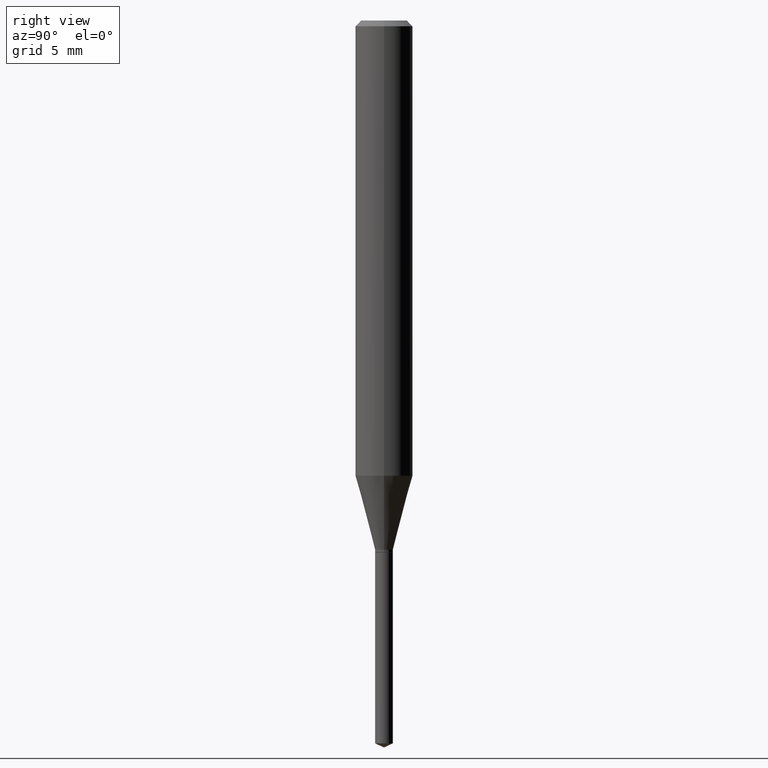
[diagram: clean part render]
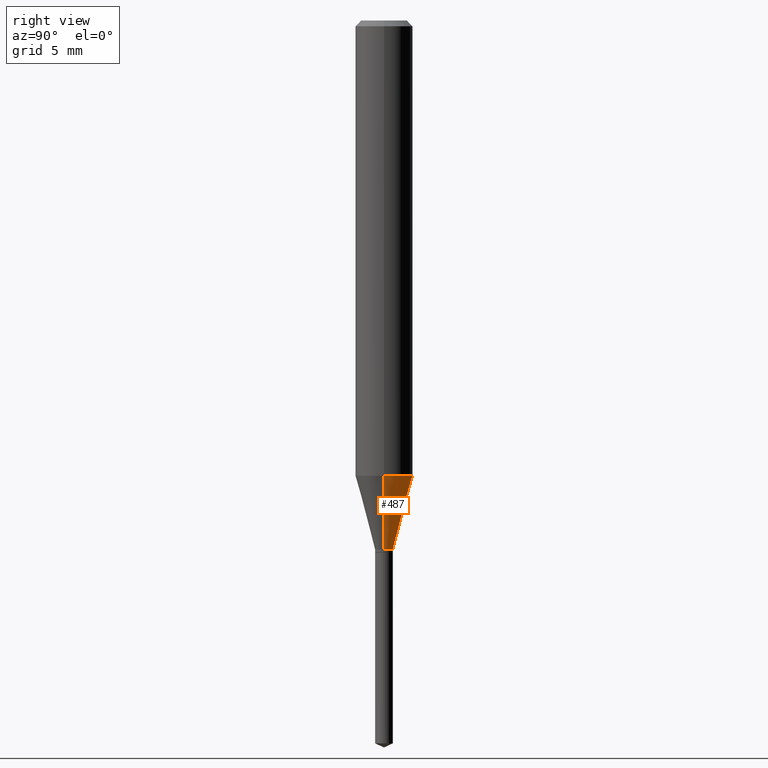
[diagram: same view with one face highlighted and labeled with its STEP entity id]
A machine part, right view. The second image highlights one B-rep face of the part: STEP entity #487.
In plain terms, the highlighted conical surface has half-angle 15 deg.
Its self-contained STEP definition (entity closure, byte-faithful):
#15 = DIRECTION ( 'NONE',  ( 1.000000000000000000, -6.982962677686268288E-15, 0.000000000000000000 ) ) ;
#32 = DIRECTION ( 'NONE',  ( -2.445468806185136597E-29, 3.491481338843145583E-15, 1.000000000000000000 ) ) ;
#36 = CARTESIAN_POINT ( 'NONE',  ( -0.05905000000000010241, -2.851659473211515038E-15, -0.9369189295915679727 ) ) ;
#63 = ORIENTED_EDGE ( 'NONE', *, *, #340, .F. ) ;
#86 = DIRECTION ( 'NONE',  ( 1.000000000000000000, -6.982962677686258033E-15, 0.000000000000000000 ) ) ;
#94 = LINE ( 'NONE', #140, #199 ) ;
#107 = ORIENTED_EDGE ( 'NONE', *, *, #469, .T. ) ;
#124 = DIRECTION ( 'NONE',  ( 0.2588190451025211281, 1.565188264969622954E-15, 0.9659258262890679791 ) ) ;
#140 = CARTESIAN_POINT ( 'NONE',  ( -0.01830000000000000029, -3.672193857356087232E-15, -1.088999999999999968 ) ) ;
#160 = CARTESIAN_POINT ( 'NONE',  ( 0.01830000000000000029, -3.930011395001844240E-15, -1.088999999999999968 ) ) ;
#166 = CARTESIAN_POINT ( 'NONE',  ( 0.05905000000000010241, -3.683578904795229057E-15, -0.9369189295915679727 ) ) ;
#169 = AXIS2_PLACEMENT_3D ( 'NONE', #454, #32, #249 ) ;
#172 = EDGE_LOOP ( 'NONE', ( #288, #107, #331, #63 ) ) ;
#176 = VERTEX_POINT ( 'NONE', #36 ) ;
#199 = VECTOR ( 'NONE', #444, 39.37007874015748854 ) ;
#203 = CARTESIAN_POINT ( 'NONE',  ( 2.291206016240548157E-29, -3.271234958677854531E-15, -0.9369189295915679727 ) ) ;
#204 = CIRCLE ( 'NONE', #395, 0.05905000000000010241 ) ;
#209 = CARTESIAN_POINT ( 'NONE',  ( -0.01830000000000000029, -3.680922560703194750E-15, -1.088999999999999968 ) ) ;
#236 = CARTESIAN_POINT ( 'NONE',  ( 0.01830000000000000029, -3.930011395001844240E-15, -1.088999999999999968 ) ) ;
#244 = DIRECTION ( 'NONE',  ( -2.445468806185136597E-29, 3.491481338843145583E-15, 1.000000000000000000 ) ) ;
#249 = DIRECTION ( 'NONE',  ( 1.000000000000000000, -6.982962677686258033E-15, 0.000000000000000000 ) ) ;
#278 = EDGE_CURVE ( 'NONE', #386, #176, #204, .T. ) ;
#287 = FACE_OUTER_BOUND ( 'NONE', #172, .T. ) ;
#288 = ORIENTED_EDGE ( 'NONE', *, *, #293, .T. ) ;
#293 = EDGE_CURVE ( 'NONE', #383, #416, #346, .T. ) ;
#319 = CONICAL_SURFACE ( 'NONE', #169, 0.01830000000000000029, 0.2617993877991498519 ) ;
#331 = ORIENTED_EDGE ( 'NONE', *, *, #278, .F. ) ;
#340 = EDGE_CURVE ( 'NONE', #383, #386, #476, .T. ) ;
#346 = CIRCLE ( 'NONE', #426, 0.01830000000000000029 ) ;
#354 = DIRECTION ( 'NONE',  ( -2.445468806185136597E-29, 3.491481338843145583E-15, 1.000000000000000000 ) ) ;
#379 = VECTOR ( 'NONE', #124, 39.37007874015748854 ) ;
#383 = VERTEX_POINT ( 'NONE', #160 ) ;
#386 = VERTEX_POINT ( 'NONE', #166 ) ;
#395 = AXIS2_PLACEMENT_3D ( 'NONE', #203, #354, #15 ) ;
#416 = VERTEX_POINT ( 'NONE', #209 ) ;
#426 = AXIS2_PLACEMENT_3D ( 'NONE', #478, #244, #86 ) ;
#444 = DIRECTION ( 'NONE',  ( -0.2588190451025211281, 5.211531920934547886E-15, 0.9659258262890679791 ) ) ;
#454 = CARTESIAN_POINT ( 'NONE',  ( 2.663115529935613220E-29, -3.802223178000185445E-15, -1.088999999999999968 ) ) ;
#469 = EDGE_CURVE ( 'NONE', #416, #176, #94, .T. ) ;
#476 = LINE ( 'NONE', #236, #379 ) ;
#478 = CARTESIAN_POINT ( 'NONE',  ( 2.663115529935613220E-29, -3.802223178000185445E-15, -1.088999999999999968 ) ) ;
#487 = ADVANCED_FACE ( 'NONE', ( #287 ), #319, .T. ) ;